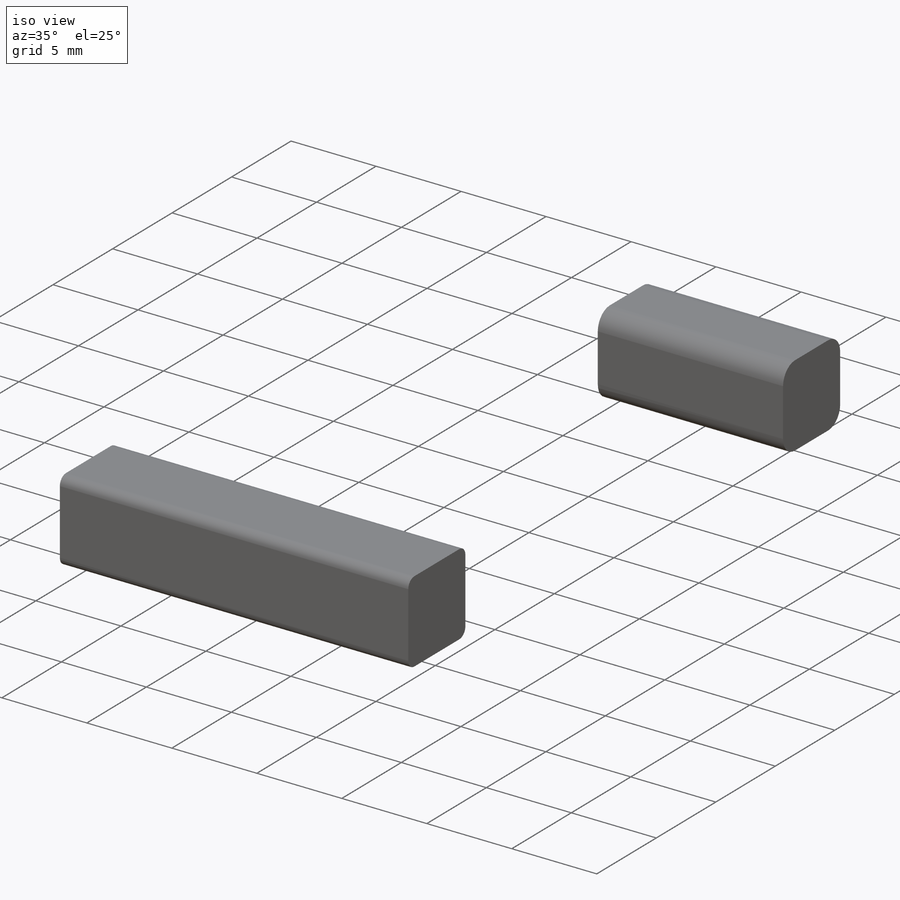
[diagram: iso view]
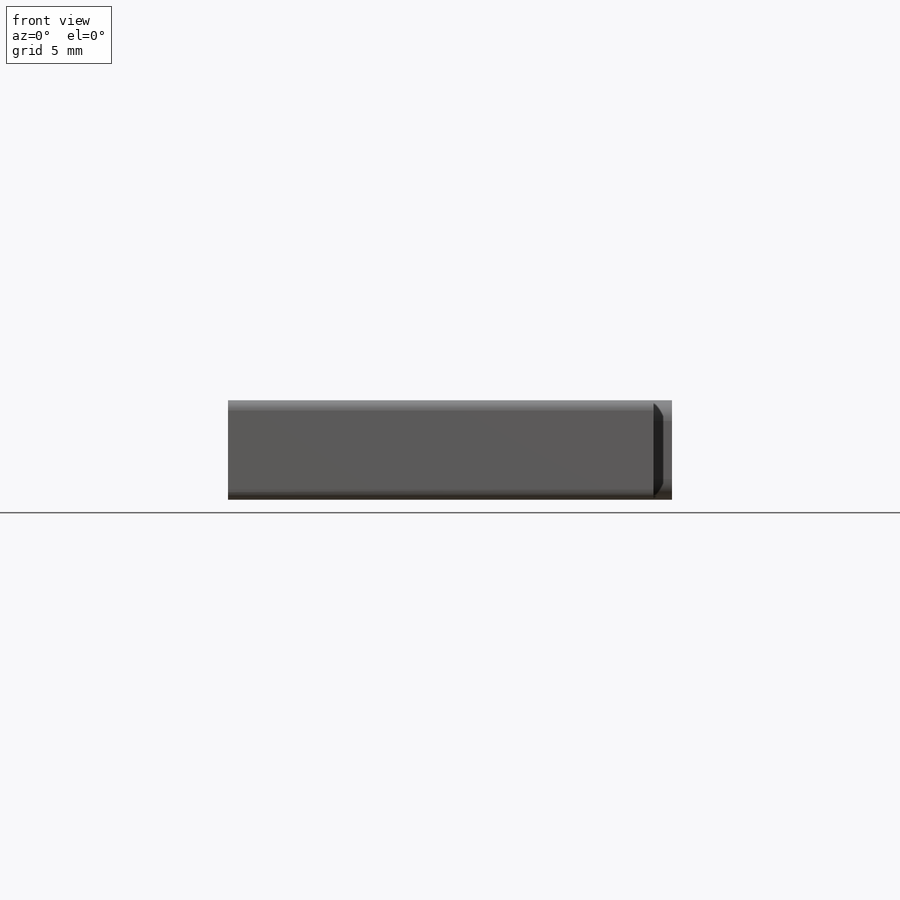
[diagram: front view]
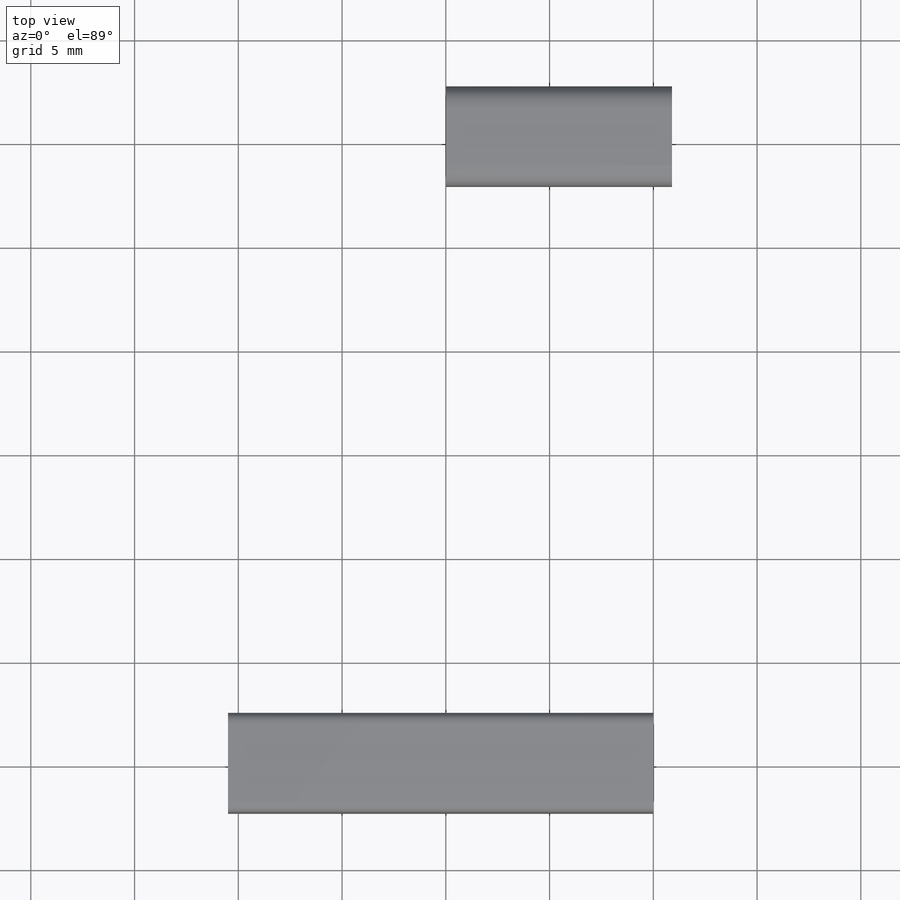
[diagram: top view]
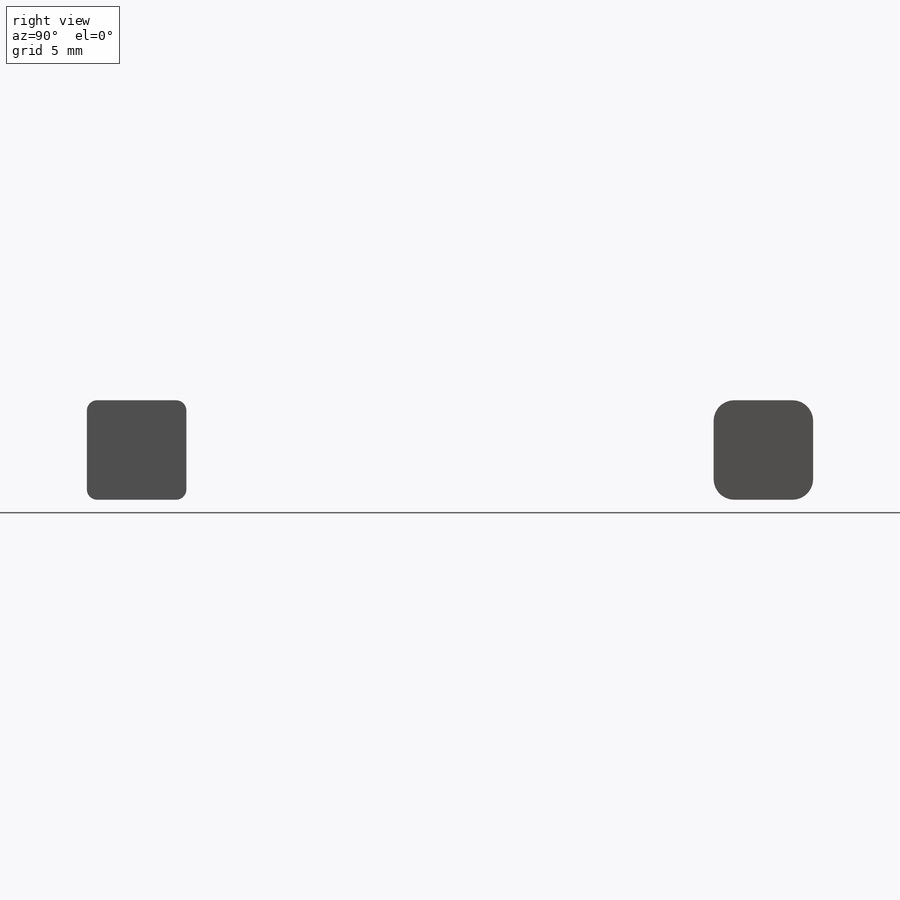
[diagram: right view]
SOLIDWORKS PART (.sldprt)
format: sldprt  version: not decoded by parser v0  size: 351,232 bytes
history: native  units: mm
features: sketch x11, extrude x6, fillet x6, cut_extrude x5, plane x3, material x1 (+9 scaffold rows collapsed)
feature tree (41):
  scaffold x9  (default folders/planes/origin — collapsed)
  material  "材质 <未指定>"
  plane  "前视基准面"
  plane  "上视基准面"
  plane  "右视基准面"
  sketch  "草图1"  dims[D1=9.8mm D2=5.0mm D3=5.0mm]
  extrude  "凸台-拉伸1"  Depth=5mm
  sketch  "草图2"  dims[D1=10.0mm D2=5.0mm]
  extrude  "凸台-拉伸2"  Depth=5mm
  sketch  "草图3"
  cut_extrude  "切除-拉伸1"  Depth=10mm
  sketch  "草图4"  dims[c1.D1=4.9mm c1.D2=4.9mm c2.D1=4.9mm c2.D2=0.1mm]
  cut_extrude  "切除-拉伸2"  Depth=10mm
  sketch  "草图5"  dims[D1=4.8mm D2=4.6mm D3=4.6mm D4=4.5mm D5=4.5mm D6=4.5mm]
  extrude  "凸台-拉伸3"  Depth=10mm
  fillet  "圆角1"  Radius=0.5mm
  fillet  "圆角2"  Radius=0.5mm
  fillet  "圆角3"  Radius=0.5mm
  fillet  "圆角4"  Radius=0.5mm
  sketch  "草图6"
  extrude  "凸台-拉伸4"  Depth=20.5mm
  fillet  "圆角5"  Radius=1mm
  sketch  "草图8"  dims[D1=0.0mm]
  extrude  "凸台-拉伸5"  Depth=10.5mm
  sketch  "草图9"
  cut_extrude  "切除-拉伸3"  Depth=10.5mm
  sketch  "草图10"
  cut_extrude  "切除-拉伸4"  Depth=10.5mm
  sketch  "草图11"
  cut_extrude  "切除-拉伸5"  Depth=100.5mm
  sketch  "草图12"  dims[D1=4.8mm D2=4.8mm]
  extrude  "凸台-拉伸6"  Depth=10.9mm
  fillet  "圆角6"  Radius=1mm
decode coverage: 23 of 28 modeling features carry decoded parameters
note: suppression state not decoded; provenance and decode notes live in map.json
